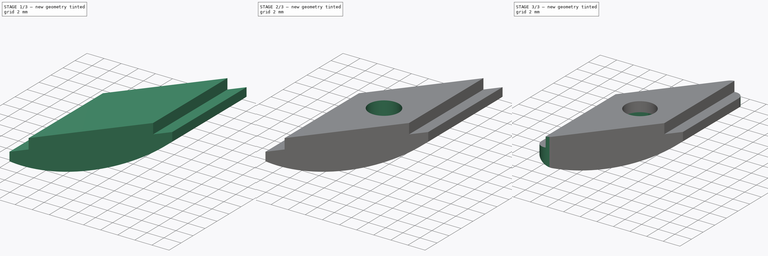
[diagram: build sequence overview — one tinted view per stage of 3, left to right]
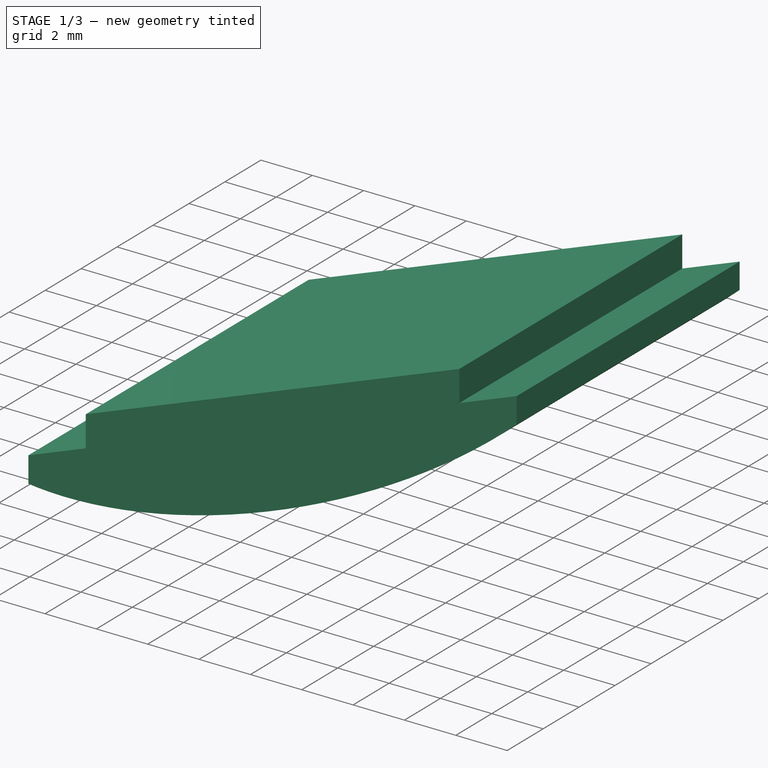
[diagram: stage 1 of 3 — iso view after this stage's code; geometry added in this stage tinted green]
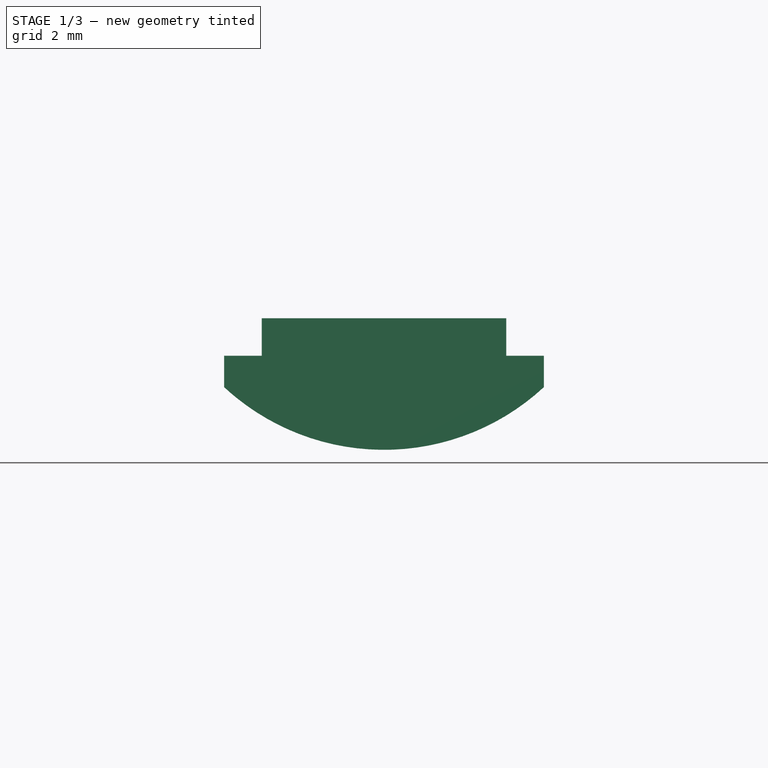
[diagram: stage 1 of 3 — front view after this stage's code; geometry added in this stage tinted green]
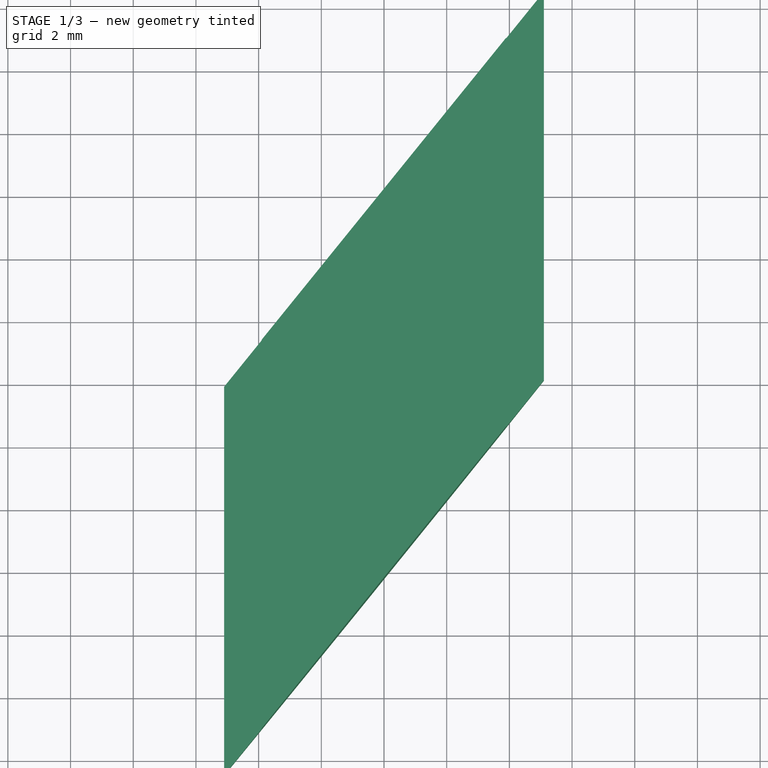
[diagram: stage 1 of 3 — top view after this stage's code; geometry added in this stage tinted green]
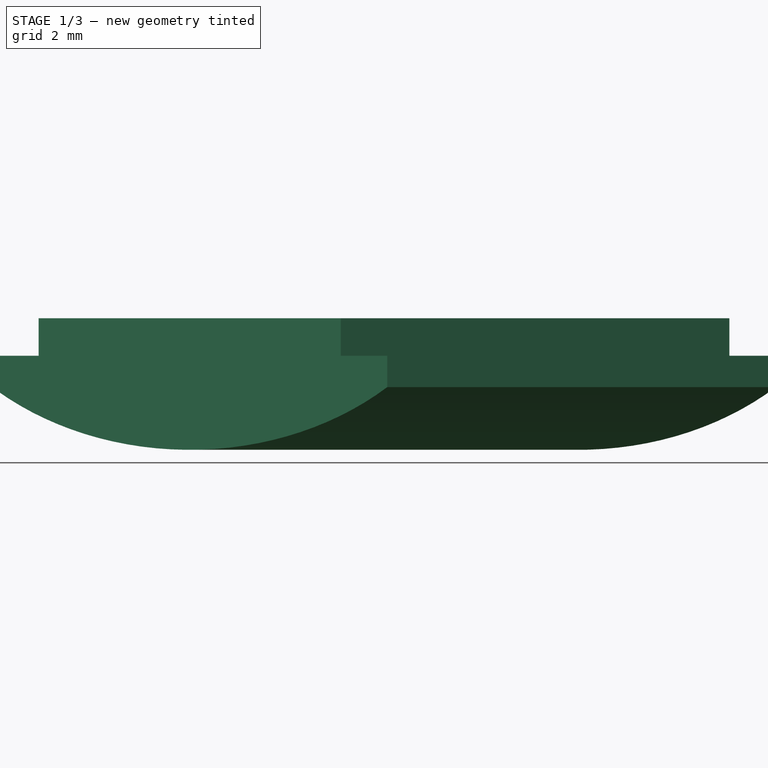
[diagram: stage 1 of 3 — right view after this stage's code; geometry added in this stage tinted green]
FCSTD DOCUMENT  (FreeCAD 0.17R13522 (Git))
Label: Eng_2020_3dp_diagonal_nut
License: All rights reserved
LicenseURL: http://en.wikipedia.org/wiki/All_rights_reserved
objects: Sketcher::SketchObject×4, PartDesign::Pocket×3, PartDesign::Pad×1, PartDesign::Plane×1, PartDesign::Fillet×1, PartDesign::Body×1
note: 15 computed .brp shape members not serialized (recipe doc carries the construction recipe); baked Part::Feature solids carry a one-line shape summary decoded from their .brp

FEATURE [Sketcher::SketchObject] Sketch
  MapMode = 5
  Placement = pos=(0,0,0) rot=(1,0,0;1.5708rad)
  Support = -> [XZ_Plane]
  sketch-geometry (9):
    g0: LineSegment StartX=-3.9 StartY=2.2 StartZ=0 EndX=3.9 EndY=2.2 EndZ=0
    g1: LineSegment StartX=3.9 StartY=2.2 StartZ=0 EndX=3.9 EndY=1 EndZ=0
    g2: LineSegment StartX=3.9 StartY=1 StartZ=0 EndX=5.1 EndY=1 EndZ=0
    g3: LineSegment StartX=5.1 StartY=1 StartZ=0 EndX=5.1 EndY=0 EndZ=0
    g4: LineSegment StartX=-5.1 StartY=0 StartZ=0 EndX=-5.1 EndY=1 EndZ=0
    g5: LineSegment StartX=-5.1 StartY=1 StartZ=0 EndX=-3.9 EndY=1 EndZ=0
    g6: LineSegment StartX=-3.9 StartY=1 StartZ=0 EndX=-3.9 EndY=2.2 EndZ=0
    g7: ArcOfCircle CenterX=0 CenterY=5.5025 CenterZ=0 NormalX=0 NormalY=0 NormalZ=1 AngleXU=0 Radius=7.5025 StartAngle=3.96494 EndAngle=5.45984
    g8: LineSegment [constr] StartX=0 StartY=0 StartZ=0 EndX=0 EndY=-2 EndZ=0
  constraints (28):
    c: Horizontal(g0)
    c: Coincident(g0,g1)
    c: Vertical(g1)
    c: Coincident(g1,g2)
    c: Horizontal(g2)
    c: Coincident(g2,g3)
    c: Vertical(g3)
    c: Vertical(g4)
    c: Coincident(g4,g5)
    c: Horizontal(g5)
    c: Coincident(g5,g6)
    c: Coincident(g6,g0)
    c: Vertical(g6)
    c: Equal(g6,g1)
    c: Equal(g4,g3)
    c: Equal(g2,g5)
    c: PointOnObject(g4,g-1)
    c: Coincident(g7,g4)
    c: Coincident(g7,g3)
    c: DistanceX(g5,g5) = 1.2
    c: DistanceX(g0,g0) = 7.8
    c: PointOnObject(g7,g-2)
    c: DistanceY(g4,g4) = 1
    c: DistanceY(g6,g6) = 1.2
    c: Coincident(g8,g-1)
    c: PointOnObject(g8,g7)
    c: Vertical(g8)
    c: DistanceY(g8,g8) = 2
FEATURE [PartDesign::Pad] Pad
  Length = 25
  Length2 = 100
  Midplane = true
  Placement = pos=(0,0,0) rot=(1,0,0;1.5708rad)
  Profile = -> Sketch
  Type = 0
FEATURE [Sketcher::SketchObject] Sketch002
  MapMode = 5
  Placement = pos=(0,0,2.2) rot=(0,0,1;3.14159rad)
  Support = -> [Pad]
  sketch-geometry (7):
    g0: LineSegment StartX=-5.1 StartY=-0.102052 StartZ=0 EndX=5.1 EndY=12.5 EndZ=0
    g1: LineSegment StartX=5.1 StartY=12.5 StartZ=0 EndX=-5.1 EndY=12.5 EndZ=0
    g2: LineSegment StartX=-5.1 StartY=12.5 StartZ=0 EndX=-5.1 EndY=-0.102052 EndZ=0
    g3: LineSegment StartX=-5.1 StartY=-12.5 StartZ=0 EndX=5.1 EndY=0.102052 EndZ=0
    g4: LineSegment StartX=5.1 StartY=0.102052 StartZ=0 EndX=5.1 EndY=-12.5 EndZ=0
    g5: LineSegment StartX=5.1 StartY=-12.5 StartZ=0 EndX=-5.1 EndY=-12.5 EndZ=0
    g6: LineSegment [constr] StartX=5.1 StartY=0.102052 StartZ=0 EndX=-0.962901 EndY=5.00931 EndZ=0
  constraints (21):
    c: Coincident(g0,g1)
    c: Horizontal(g1)
    c: Coincident(g1,g2)
    c: Coincident(g2,g0)
    c: Vertical(g2)
    c: Coincident(g3,g4)
    c: Vertical(g4)
    c: Coincident(g4,g5)
    c: Coincident(g5,g3)
    c: Horizontal(g5)
    c: DistanceX(g4) = 5.1
    c: DistanceY(g4) = -12.5
    c: Symmetric(g3,g4,g-2)
    c: Symmetric(g1,g0,g-2)
    c: DistanceX(g1) = -5.1
    c: DistanceY(g1) = 12.5
    c: Coincident(g6,g3)
    c: PointOnObject(g6,g0)
    c: Perpendicular(g3,g6)
    c: Perpendicular(g0,g6)
    c: Distance(g6) = 7.8
FEATURE [PartDesign::Pocket] Pocket
  BaseFeature = -> Pad
  Length = 5
  Length2 = 100
  Placement = pos=(0,0,0) rot=(1,0,0;1.5708rad)
  Profile = -> Sketch002
  Type = 1
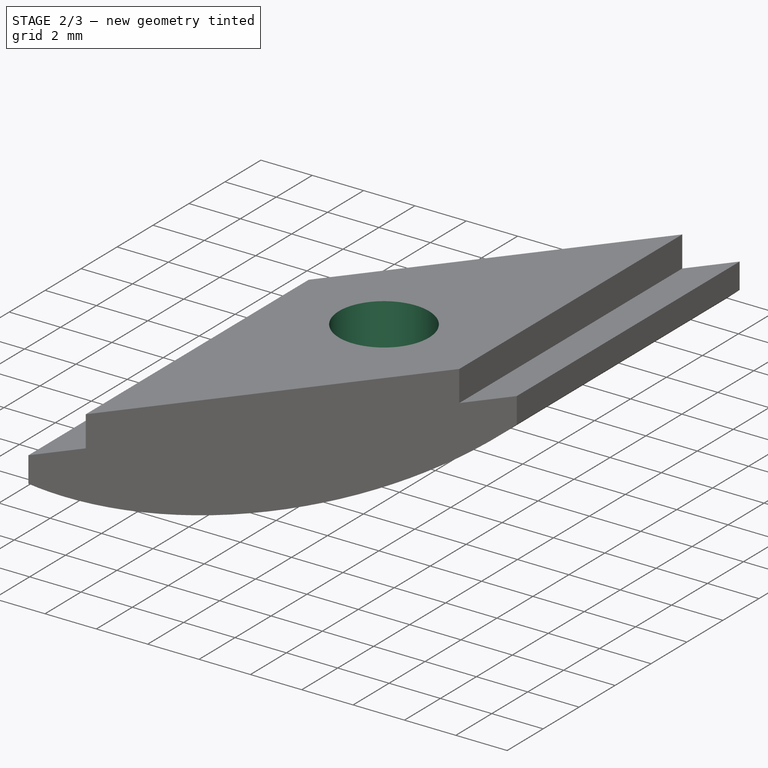
[diagram: stage 2 of 3 — iso view after this stage's code; geometry added in this stage tinted green]
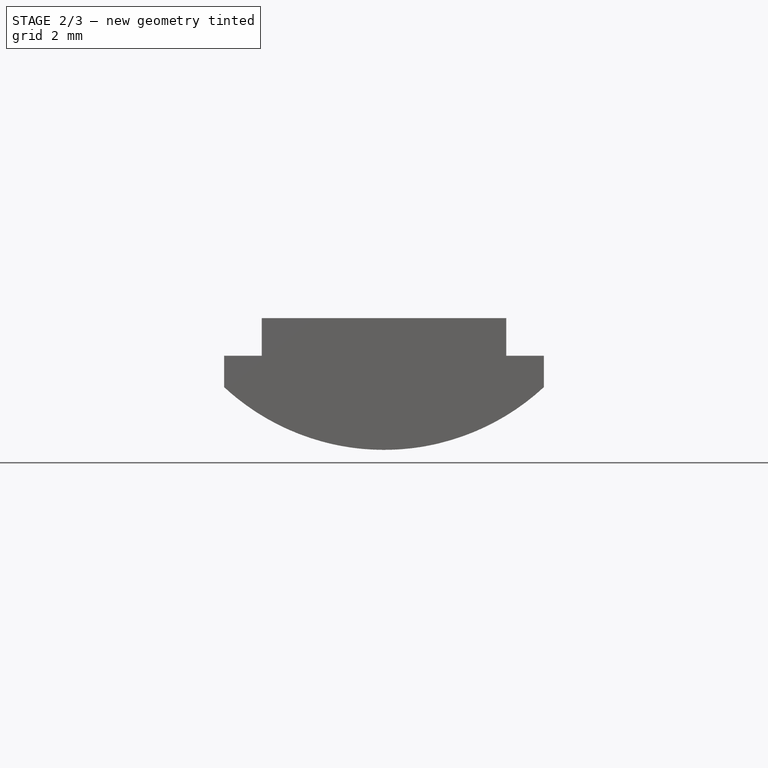
[diagram: stage 2 of 3 — front view after this stage's code; geometry added in this stage tinted green]
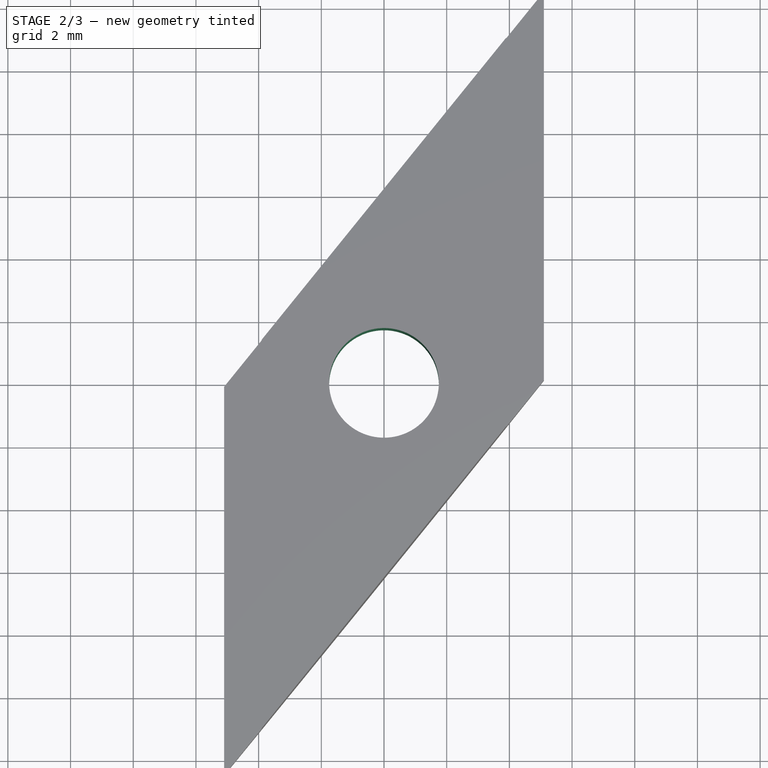
[diagram: stage 2 of 3 — top view after this stage's code; geometry added in this stage tinted green]
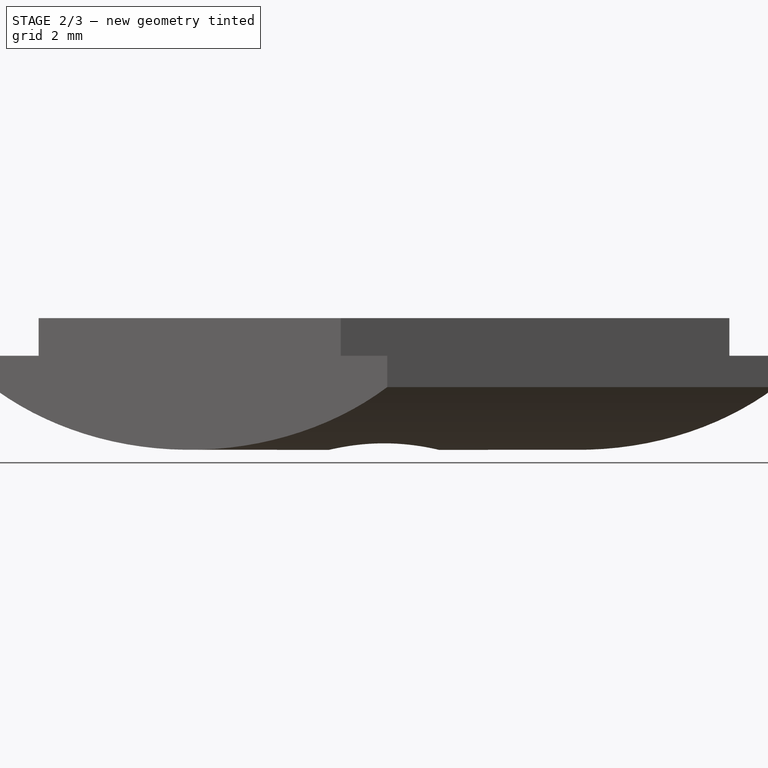
[diagram: stage 2 of 3 — right view after this stage's code; geometry added in this stage tinted green]
FEATURE [Sketcher::SketchObject] Sketch003
  MapMode = 5
  Placement = pos=(0,0,2.2) rot=(0,0,1;3.14159rad)
  Support = -> [Pocket]
  sketch-geometry (1):
    g0: Circle CenterX=0 CenterY=0 CenterZ=0 NormalX=0 NormalY=0 NormalZ=1 AngleXU=0 Radius=1.75
  constraints (2):
    c: Coincident(g0,g-1)
    c: Radius(g0) = 1.75
FEATURE [PartDesign::Pocket] Pocket001
  BaseFeature = -> Pocket
  Length = 5
  Length2 = 100
  Placement = pos=(0,0,0) rot=(1,0,0;1.5708rad)
  Profile = -> Sketch003
  Type = 1
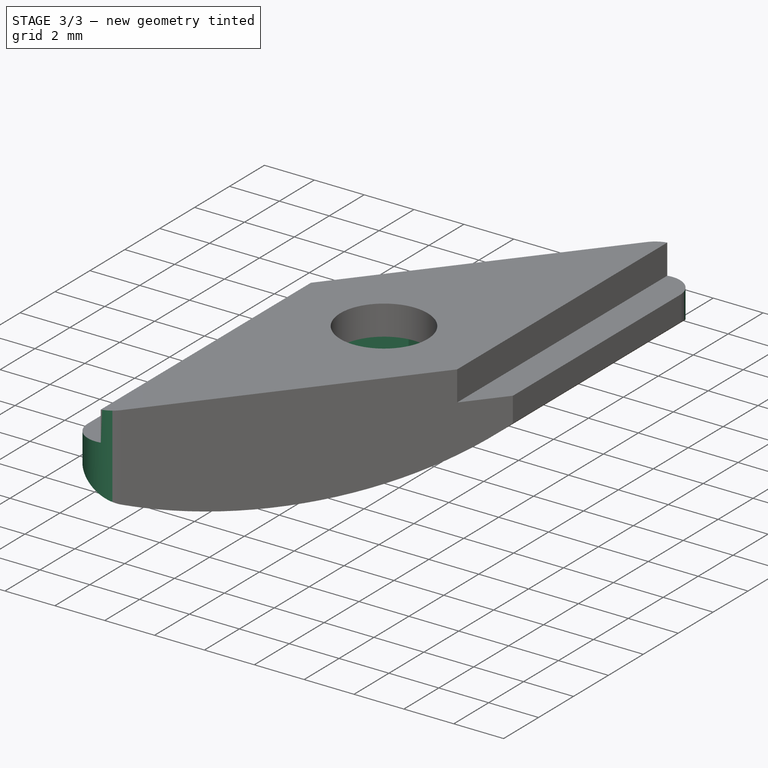
[diagram: stage 3 of 3 — iso view after this stage's code; geometry added in this stage tinted green]
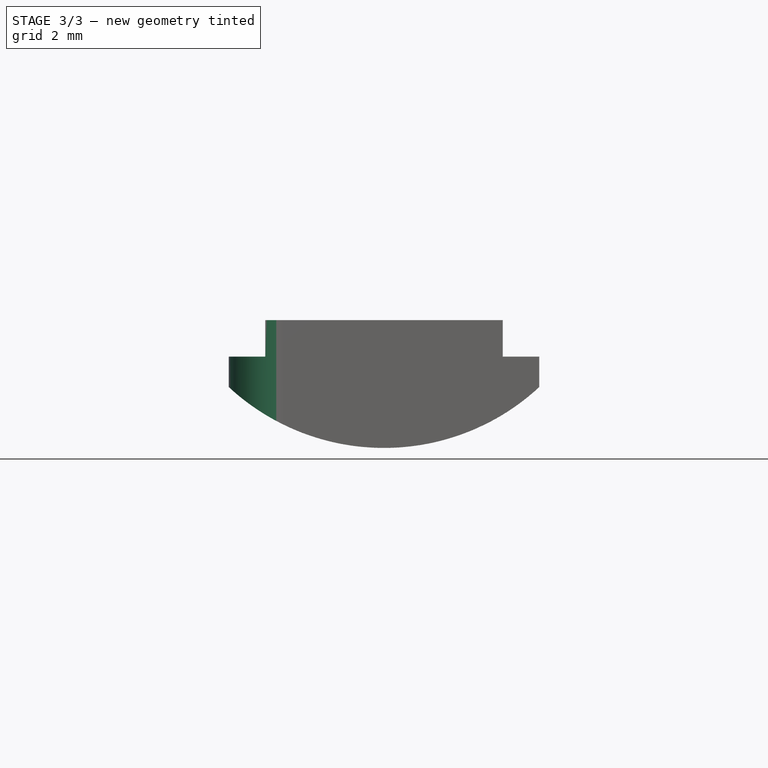
[diagram: stage 3 of 3 — front view after this stage's code; geometry added in this stage tinted green]
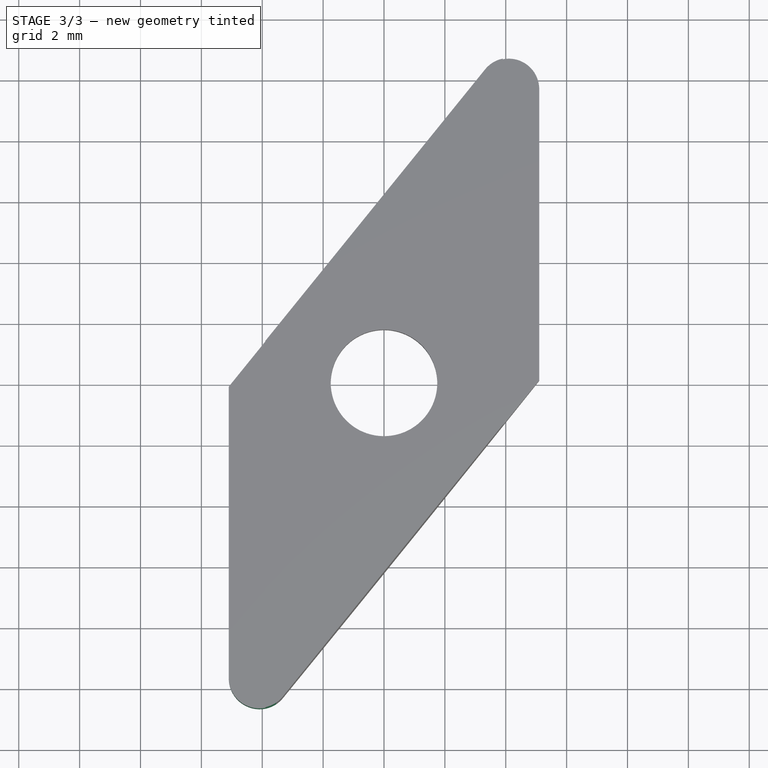
[diagram: stage 3 of 3 — top view after this stage's code; geometry added in this stage tinted green]
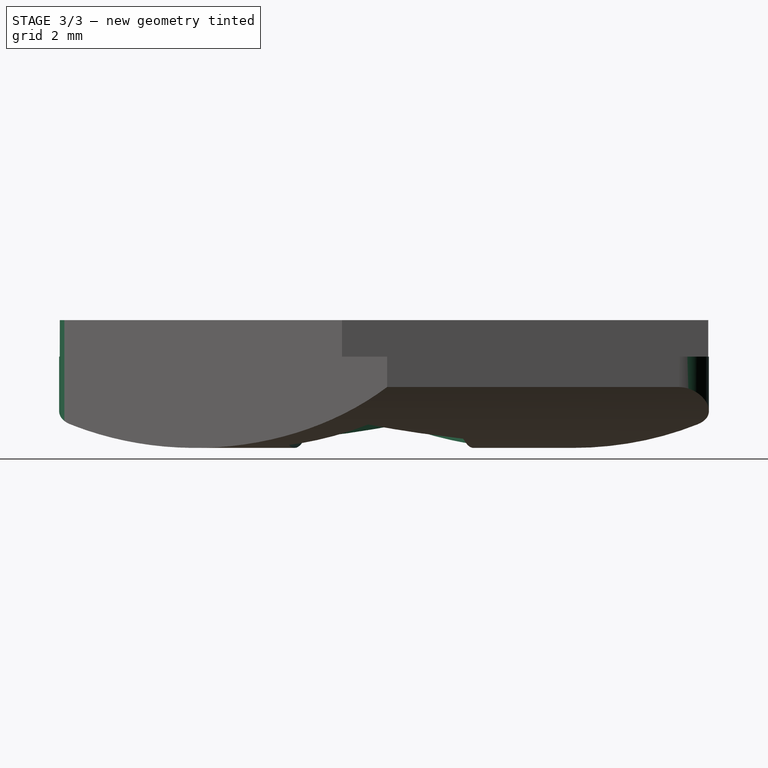
[diagram: stage 3 of 3 — right view after this stage's code; geometry added in this stage tinted green]
FEATURE [PartDesign::Plane] DatumPlane
  AttachmentOffset = pos=(0,0,-2) rot=(0,0,1;0rad)
  MapMode = 5
  Placement = pos=(0,0,-2) rot=(0,0,1;0rad)
  Support = -> [XY_Plane]
FEATURE [Sketcher::SketchObject] Sketch004
  MapMode = 5
  Placement = pos=(0,0,-2) rot=(0,0,1;0rad)
  Support = -> [DatumPlane]
  sketch-geometry (7):
    g0: LineSegment StartX=3.30885 StartY=-0.523478 StartZ=0 EndX=2.10777 EndY=2.60381 EndZ=0
    g1: LineSegment StartX=2.10777 StartY=2.60381 StartZ=0 EndX=-1.20108 EndY=3.12728 EndZ=0
    g2: LineSegment StartX=-1.20108 StartY=3.12728 StartZ=0 EndX=-3.30885 EndY=0.523478 EndZ=0
    g3: LineSegment StartX=-3.30885 StartY=0.523478 StartZ=0 EndX=-2.10777 EndY=-2.60381 EndZ=0
    g4: LineSegment StartX=-2.10777 StartY=-2.60381 StartZ=0 EndX=1.20108 EndY=-3.12728 EndZ=0
    g5: LineSegment StartX=1.20108 StartY=-3.12728 StartZ=0 EndX=3.30885 EndY=-0.523478 EndZ=0
    g6: Circle [constr] CenterX=0 CenterY=0 CenterZ=0 NormalX=0 NormalY=0 NormalZ=1 AngleXU=0 Radius=3.35
  constraints (16):
    c: Coincident(g0,g1)
    c: Coincident(g1,g2)
    c: Coincident(g2,g3)
    c: Coincident(g3,g4)
    c: Coincident(g4,g5)
    c: Coincident(g5,g0)
    c: Equal(g0, g1-g5) x5
    c: PointOnObject(g0,g6)
    c: PointOnObject(g1,g6)
    c: PointOnObject(g2,g6)
    c: PointOnObject(g3,g6)
    c: PointOnObject(g4,g6)
    c: PointOnObject(g5,g6)
    c: Coincident(g6,g-1)
    c: Radius(g6) = 3.35
    c: Angle(g-1,g5) = 0.890292
FEATURE [PartDesign::Pocket] Pocket002
  BaseFeature = -> Pocket001
  Length = 3
  Length2 = 100
  Placement = pos=(0,0,0) rot=(1,0,0;1.5708rad)
  Profile = -> Sketch004
  Reversed = true
  Type = 0
FEATURE [PartDesign::Fillet] Fillet
  Base = -> Pocket002 [Edge11,Edge3]
  BaseFeature = -> Pocket002
  Placement = pos=(0,0,0) rot=(1,0,0;1.5708rad)
  Radius = 1
FEATURE [PartDesign::Body] Body
  Group = -> [Sketch,Pad,Sketch002,Pocket,Sketch003,Pocket001,DatumPlane,Sketch004,Pocket002,Fillet]
  Origin = -> Origin
  Tip = -> Fillet
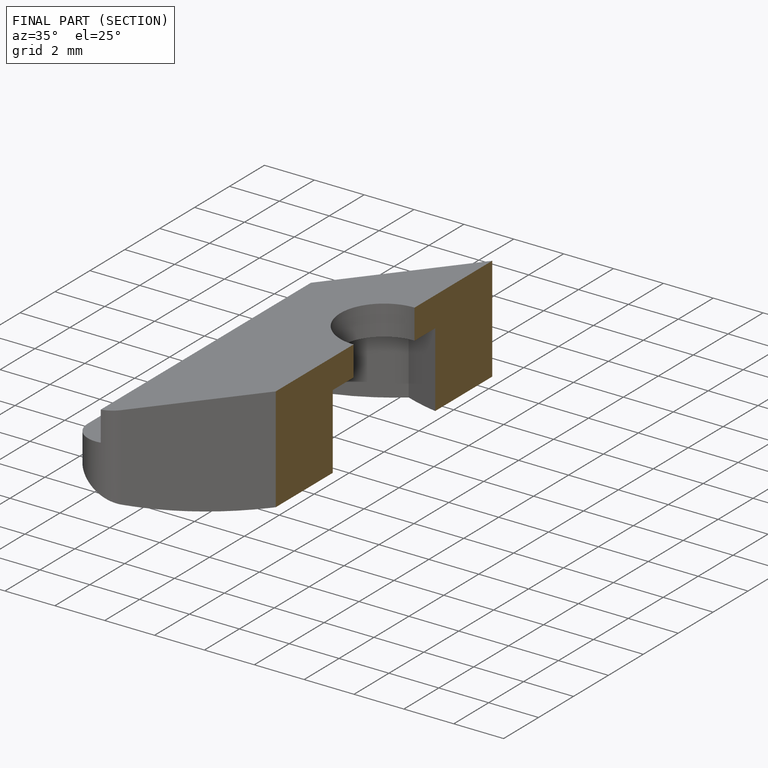
[diagram: finished part — half-section view (interior)]
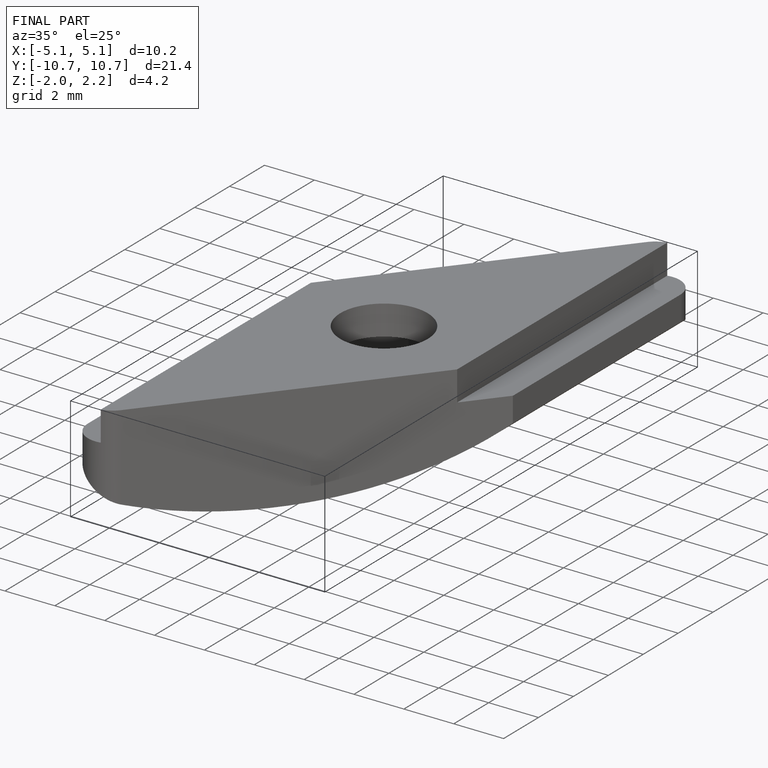
[diagram: finished part — iso view with bounding-box wireframe]
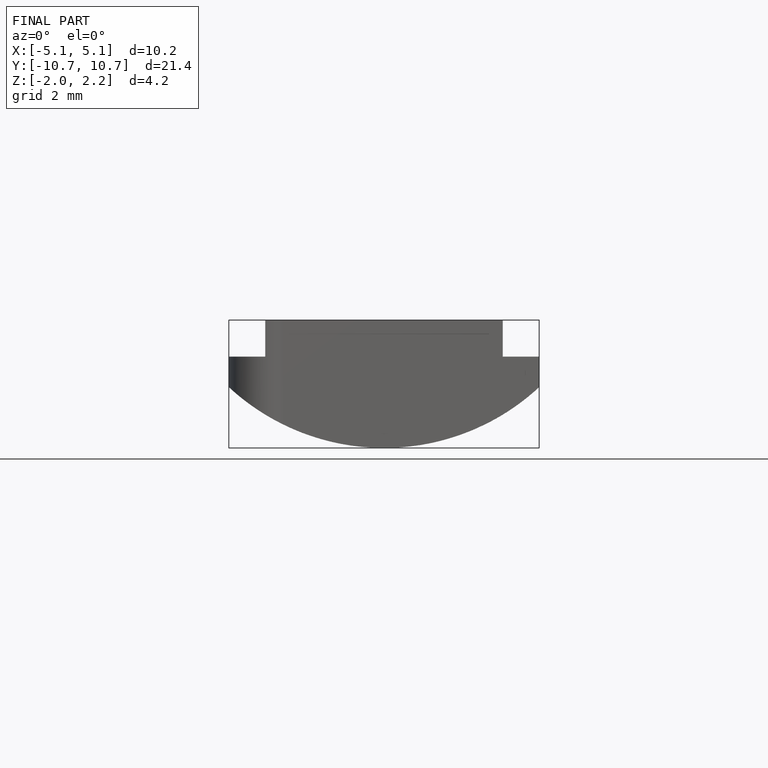
[diagram: finished part — front view with bounding-box wireframe]
